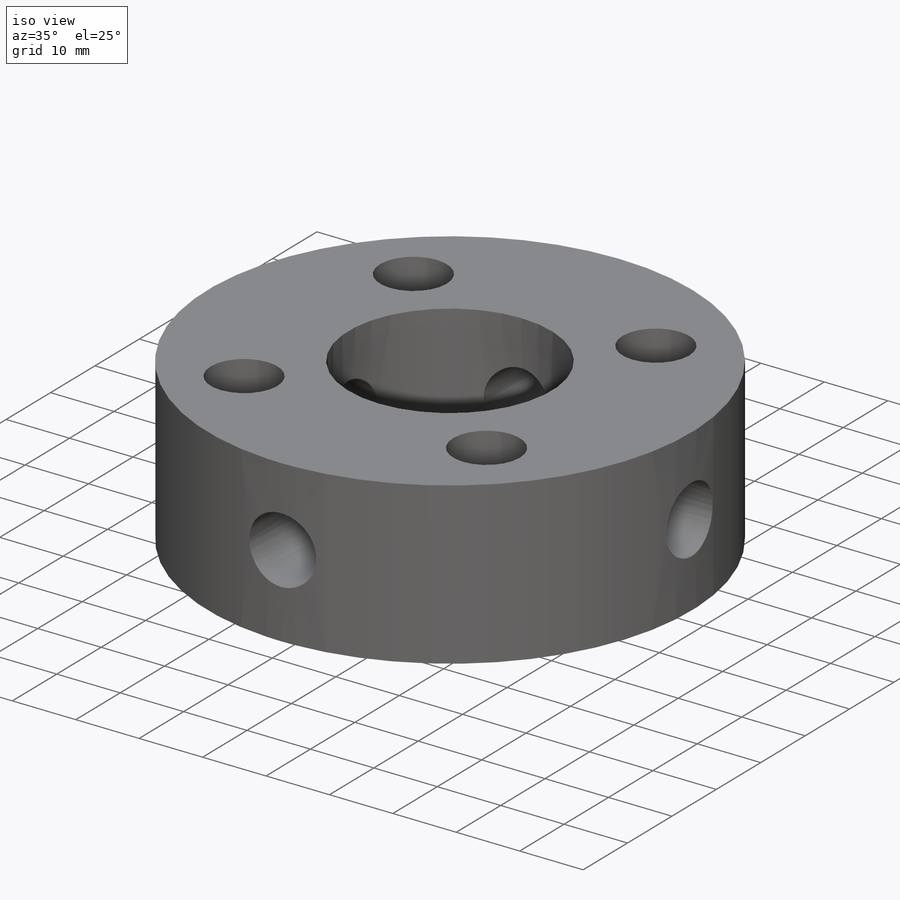
[diagram: iso view]
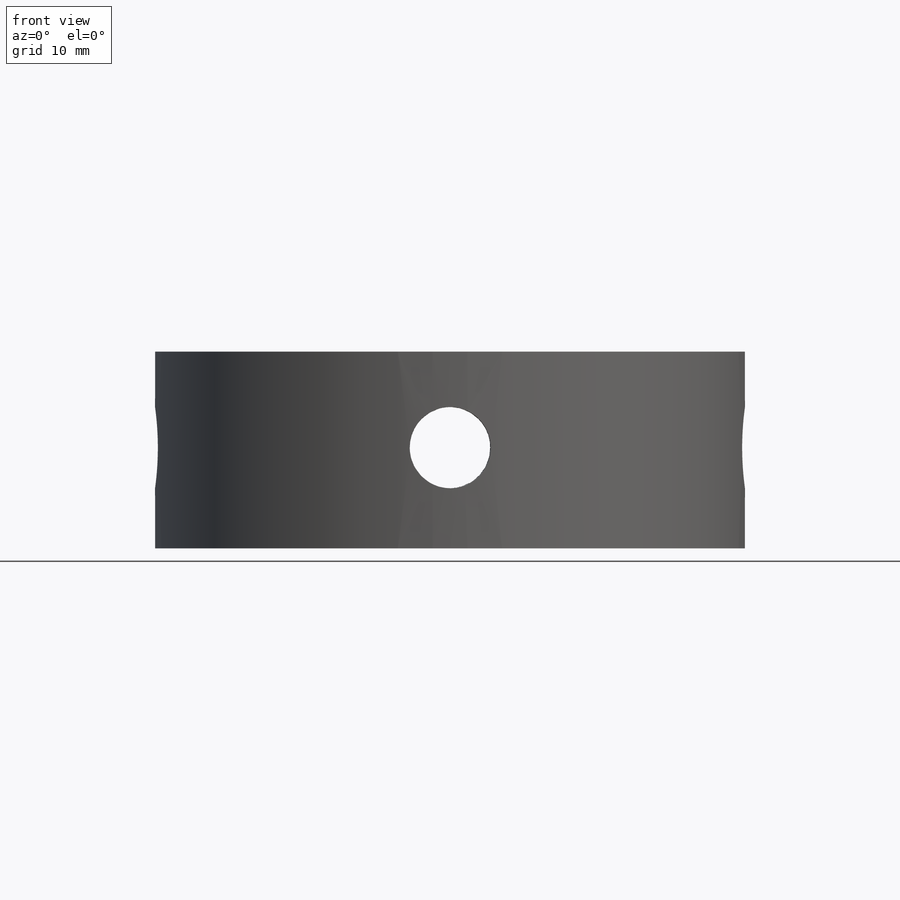
[diagram: front view]
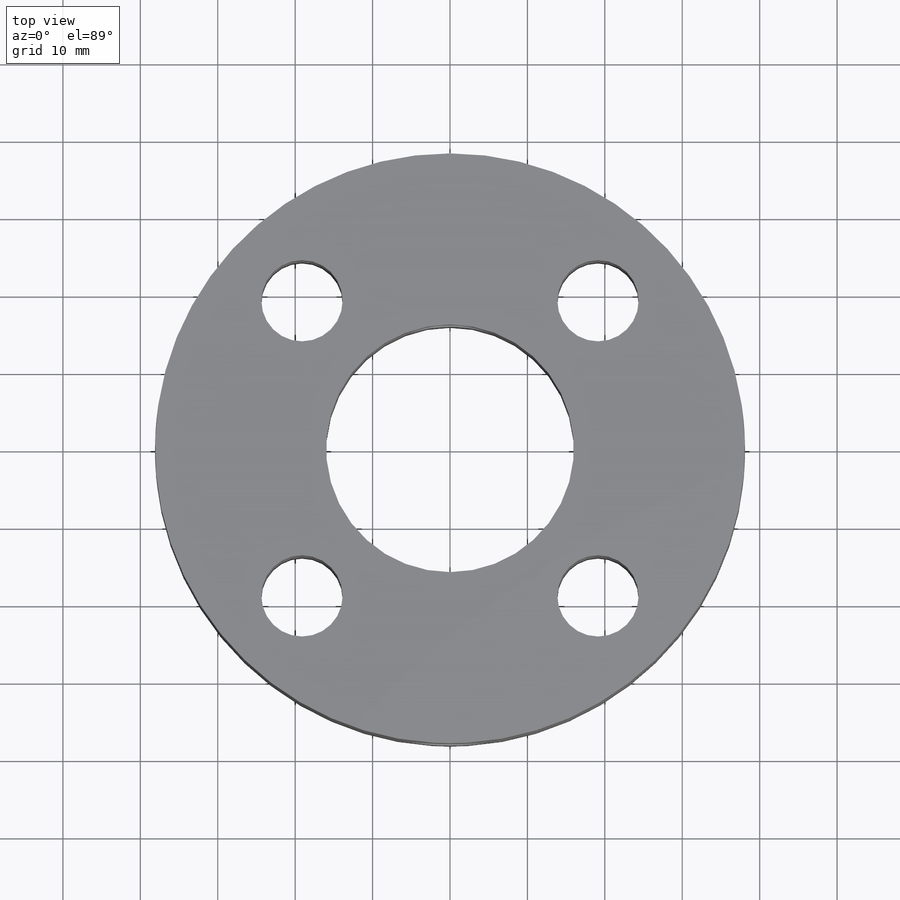
[diagram: top view]
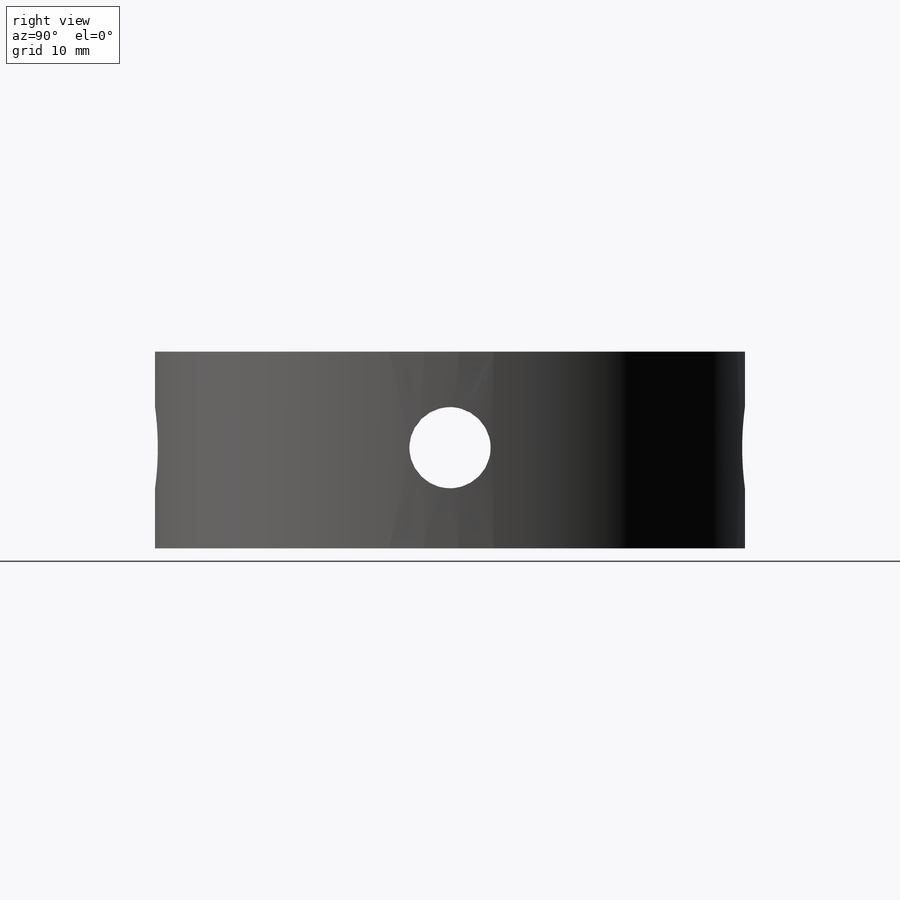
[diagram: right view]
SOLIDWORKS PART (.sldprt)
format: sldprt  version: not decoded by parser v0  size: 270,336 bytes
history: native  units: mm
features: sketch x3, material x1, extrude x1, hole x1 (+16 scaffold rows collapsed)
feature tree (22):
  scaffold x16  (default folders/planes/origin — collapsed)
  material  "Material <not specified>"
  sketch  "Sketch1"  dims[D1=76.2mm]
  extrude  "Boss-Extrude1"  Depth=25.4mm
  hole  "Ø10.5 (10.5) Diameter Hole1"  Diameter=10.5mm Depth=300mm
  sketch  "3DSketch1"  dims[c1.D1=~24.670671mm c2.D1=25.0mm c2.D3=30.0mm c3.D3=25.0mm c4.D3=25.0mm c5.D3=25.0mm c6.D3=25.0mm c7.D3=25.0mm c8.D3=28.0mm c8.D1=13.0mm c8.D2=13.0mm]
  sketch  "Sketch2"  dims[hole-wizard template sketch: 46 standard entries collapsed; hole parameters kept: c15.Hole Dia.=10.5mm c15.Hole Depth=300.0mm c15.D3=~14.816244mm c15.Drill Angle=118.0deg]
decode coverage: 5 of 5 modeling features carry decoded parameters
note: ~ marks probable driven/reference dimensions
note: suppression state not decoded; provenance and decode notes live in map.json
